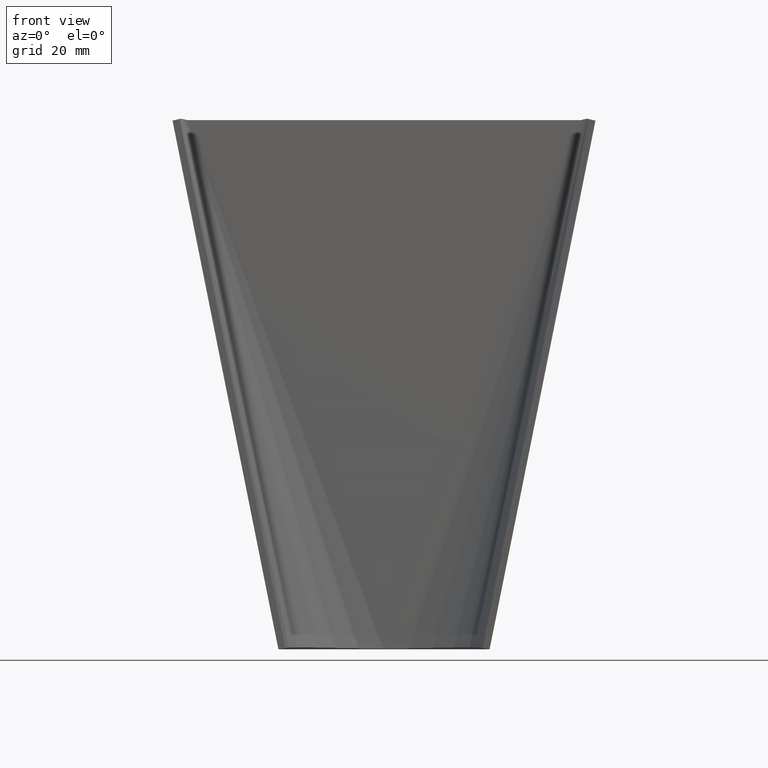
[diagram: clean part render]
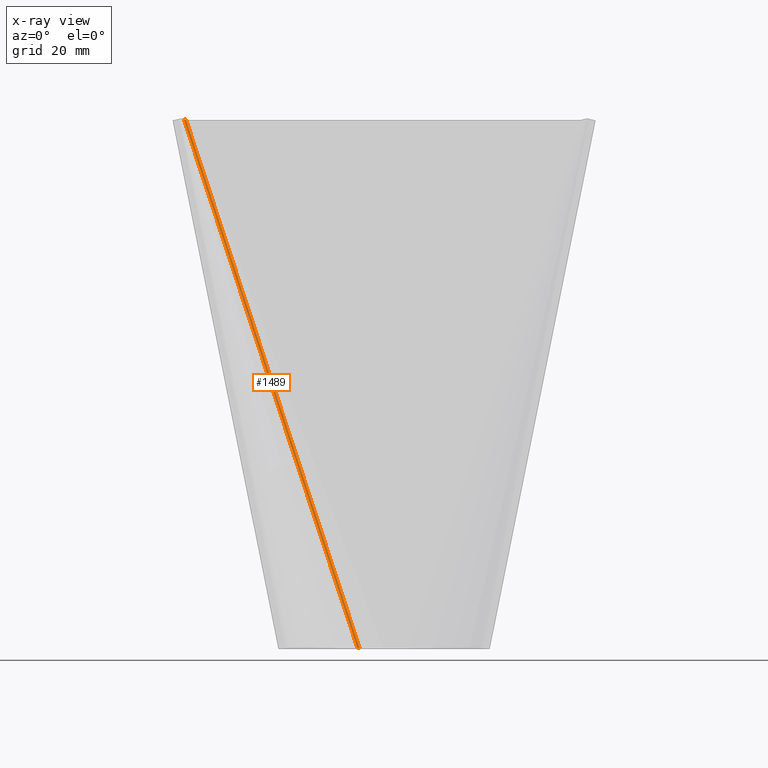
[diagram: x-ray — body ghosted, one internal face saturated and labeled with its STEP entity id]
A machine part, front view, then the same camera in x-ray: the body is ghosted and one INTERNAL B-rep face — a face not visible from any outside direction — is saturated and labeled: STEP entity #1489.
In plain terms, the highlighted cylindrical surface (edge-blend (fillet) strip) has radius 2 mm, axis along (-0.3113, 0.0689, 0.9478).
Its self-contained STEP definition (entity closure, byte-faithful):
#101=ELLIPSE($,#1626,2.41059030493754,2.);
#102=ELLIPSE($,#1627,2.41059030493753,2.);
#145=CYLINDRICAL_SURFACE($,#1625,2.);
#190=FACE_OUTER_BOUND($,#299,.T.);
#299=EDGE_LOOP($,(#1100,#1101,#1102,#1103));
#430=LINE($,#2290,#578);
#431=LINE($,#2296,#579);
#578=VECTOR($,#1869,158.261310103501);
#579=VECTOR($,#1876,158.261310103501);
#721=VERTEX_POINT($,#2282);
#723=VERTEX_POINT($,#2288);
#724=VERTEX_POINT($,#2292);
#725=VERTEX_POINT($,#2294);
#858=EDGE_CURVE($,#721,#723,#430,.T.);
#859=EDGE_CURVE($,#724,#721,#101,.T.);
#860=EDGE_CURVE($,#723,#725,#102,.T.);
#861=EDGE_CURVE($,#724,#725,#431,.T.);
#1100=ORIENTED_EDGE($,*,*,#859,.T.);
#1101=ORIENTED_EDGE($,*,*,#858,.T.);
#1102=ORIENTED_EDGE($,*,*,#860,.T.);
#1103=ORIENTED_EDGE($,*,*,#861,.F.);
#1489=ADVANCED_FACE($,(#190),#145,.F.);
#1625=AXIS2_PLACEMENT_3D($,#2291,#1870,#1871);
#1626=AXIS2_PLACEMENT_3D($,#2293,#1872,#1873);
#1627=AXIS2_PLACEMENT_3D($,#2295,#1874,#1875);
#1869=DIRECTION($,(0.311326542750861,-0.0689331474274456,-0.947799559487417));
#1870=DIRECTION('center_axis',(-0.311326542750861,0.0689331474274456,0.947799559487418));
#1871=DIRECTION('ref_axis',(-0.129671823516586,0.984955286780706,-0.114229161025636));
#1872=DIRECTION('center_axis',(0.258299008432233,-0.0571919228964388,0.964370626988573));
#1873=DIRECTION('ref_axis',(-0.941566302675444,0.208479264830887,0.264554897519715));
#1874=DIRECTION('center_axis',(-0.258299008432225,0.0571919228964371,-0.964370626988575));
#1875=DIRECTION('ref_axis',(-0.941566302675446,0.208479264830887,0.264554897519707));
#1876=DIRECTION($,(0.311326542750861,-0.0689331474274456,-0.947799559487417));
#2282=CARTESIAN_POINT('',(-56.8032921888155,37.8578155041444,0.378806225134633));
#2288=CARTESIAN_POINT('',(-7.53234566307062,26.9483652827191,-149.621193774865));
#2290=CARTESIAN_POINT($,(-56.8032921888155,37.8578155041444,0.378806225134631));
#2291=CARTESIAN_POINT('Origin',(-56.0060634837026,36.0333797630815,0.618436835572961));
#2292=CARTESIAN_POINT('',(-56.212352112624,37.9915430267189,0.228458322051275));
#2293=CARTESIAN_POINT('Origin',(-55.8029236953355,35.9884010572629,-6.93889390390723E-017));
#2294=CARTESIAN_POINT('',(-6.94140558687913,27.0820928052935,-149.771541677949));
#2295=CARTESIAN_POINT('Origin',(-6.53197716959065,25.0789508358376,-150.));
#2296=CARTESIAN_POINT($,(-56.212352112624,37.9915430267189,0.228458322051279));